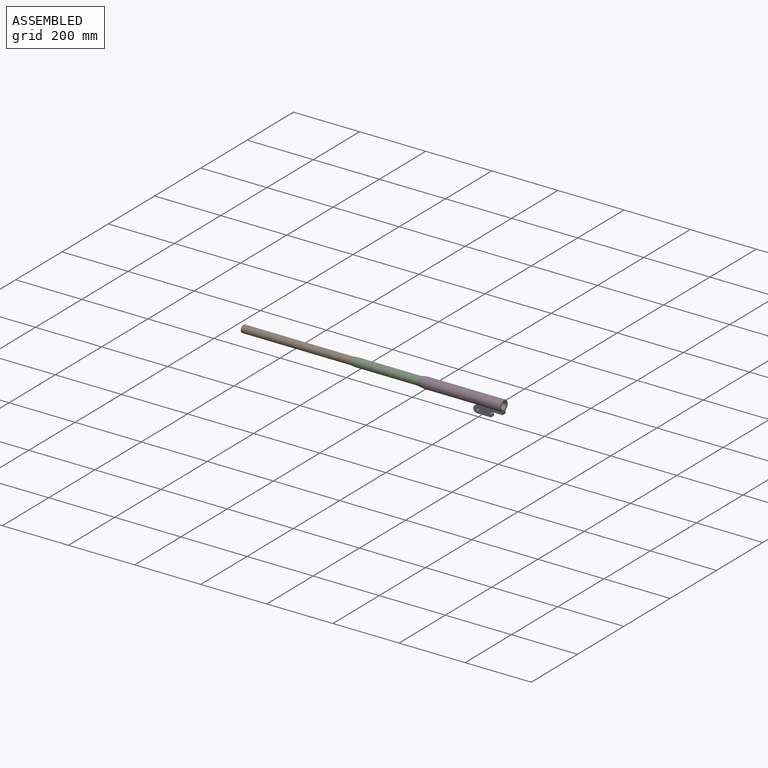
[diagram: assembled view]
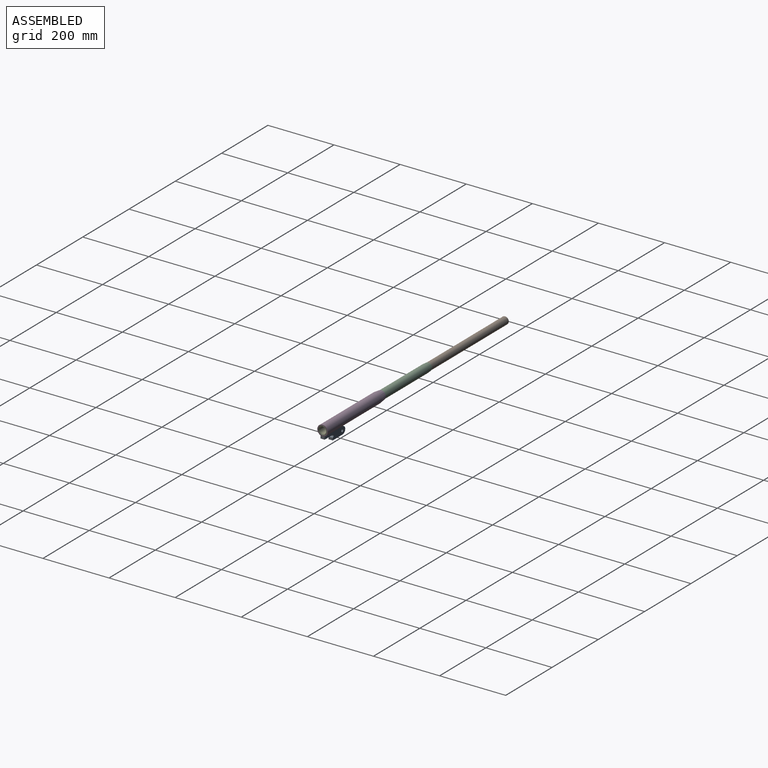
[diagram: assembled view, second angle]
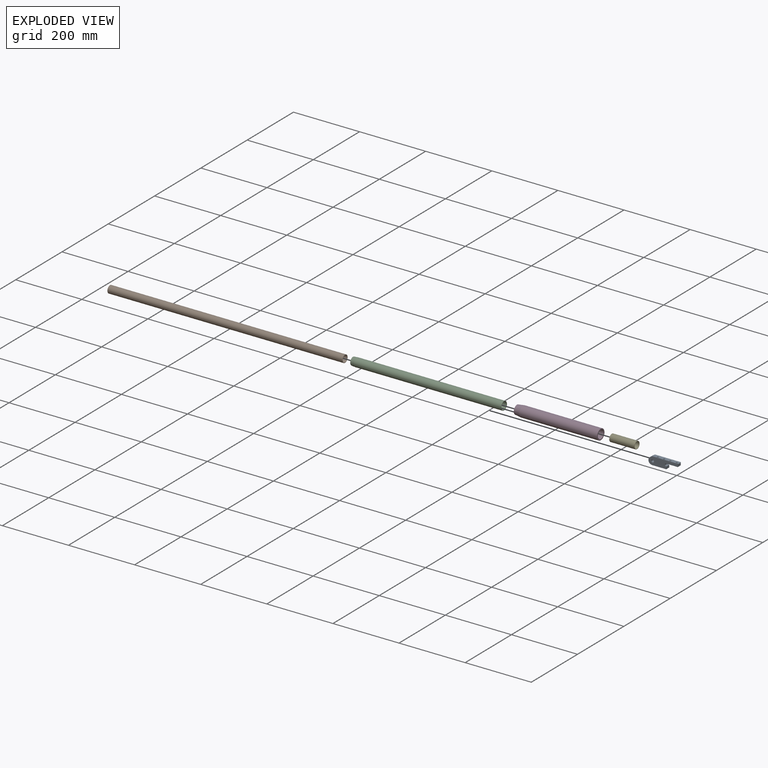
[diagram: exploded view]
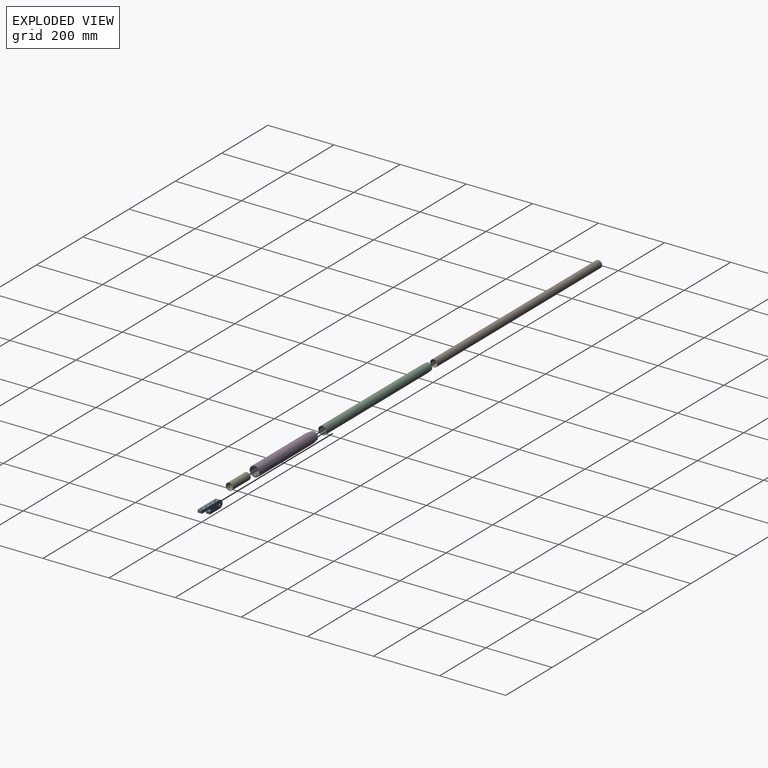
[diagram: exploded view, second angle]
ASSEMBLY  parts=5 mates=4
PART A: 23 faces, bbox 88.9x12.7x24.1 mm
  f0: cylinder r=2.38mm len=4.76mm, axis (0,0,-1), area 41mm2, adj f14,f21
  f1: cylinder r=2.38mm len=18.18mm, axis (0,0,-1), area 270.6mm2, adj f14,f19
  f2: cylinder r=2.38mm len=18.18mm, axis (0,0,-1), area 270.6mm2, adj f14,f17
  f3: cylinder r=2.38mm len=4.76mm, axis (0,0,-1), area 41mm2, adj f14,f15
  f4: plane 12.7x8.74mm, normal (1,0,0), area 99.6mm2, adj f7,f12,f13,f14
  f5: plane 12.7x7.41mm, normal (1,0,0), area 94.1mm2, adj f6,f10,f12,f13
  f6: cylinder r=3.97mm len=12.7mm, axis (0,1,0), area 158.3mm2, adj f5,f7,f12,f13
  f7: plane 34.93x12.7mm, normal (0,0,-1), area 363.4mm2, adj f4,f6,f12,f13,f16,f22
  f8: cylinder r=50.8mm len=12.7mm, axis (0,1,0), area 71.4mm2, adj f9,f12,f13,f14
  f9: cylinder r=11.11mm len=20.3mm, axis (0,1,0), area 359mm2, adj f8,f10,f12,f13
  f10: plane 42.86x12.7mm, normal (0,0,-1), area 464.2mm2, adj f5,f9,f12,f13,f18,f20
  f11: cylinder r=3.97mm len=12.7mm, axis (0,1,0), area 316.7mm2, adj f12,f13
  f12: plane 88.9x24.08mm, normal (0,-1,0), area 1460.9mm2, adj f4,f5,f6,f7,f8,f9,f10,f11
  f13: plane 88.9x24.08mm, normal (0,1,0), area 1460.9mm2, adj f4,f5,f6,f7,f8,f9,f10,f11
  f14: cylinder r=15.88mm len=80.05mm, axis (1,0,0), area 963.4mm2, adj f0,f1,f2,f3,f4,f8,f12,f13
  f15: plane 7.14x7.14mm, normal (0,0,-1), area 22.3mm2, adj f3,f16
  f16: cylinder r=3.57mm len=7.14mm, axis (0,0,-1), area 106.9mm2, adj f7,f15
  f17: plane 7.14x7.14mm, normal (0,0,-1), area 22.3mm2, adj f2,f18
  f18: cylinder r=3.57mm len=7.14mm, axis (0,0,-1), area 106.9mm2, adj f10,f17
  f19: plane 7.14x7.14mm, normal (0,0,-1), area 22.3mm2, adj f1,f20
  f20: cylinder r=3.57mm len=7.14mm, axis (0,0,-1), area 106.9mm2, adj f10,f19
  f21: plane 7.14x7.14mm, normal (0,0,-1), area 22.3mm2, adj f0,f22
  f22: cylinder r=3.57mm len=7.14mm, axis (0,0,-1), area 106.9mm2, adj f7,f21
PART B: 5 faces, bbox 711.2x22.2x22.2 mm
  f0: cylinder r=9.46mm len=701.04mm, axis (1,0,0), area 41675.7mm2, adj f2,f4
  f1: cylinder r=11.11mm len=711.2mm, axis (1,0,0), area 49657.3mm2, adj f2,f3
  f2: plane 22.23x22.23mm, normal (-1,0,0), area 106.7mm2, adj f0,f1
  f3: plane 22.23x22.23mm, normal (1,0,0), area 51.4mm2, adj f1,f4
  f4: cone r=9.46mm half-angle=5deg, axis (1,0,0), area 634.8mm2, adj f0,f3
PART C: 10 faces, bbox 457.2x25.4x25.4 mm
  f0: cylinder r=11.23mm len=456.69mm, axis (1,0,0), area 32165.6mm2, adj f2,f4,f6,f7,f8,f9
  f1: cylinder r=12.7mm len=444.5mm, axis (1,0,0), area 35420.1mm2, adj f3,f5,f6,f7,f8,f9
  f2: plane 23.37x23.37mm, normal (-1,0,0), area 32.9mm2, adj f0,f5
  f3: plane 25.4x25.4mm, normal (1,0,0), area 74.1mm2, adj f1,f4
  f4: cone r=11.23mm half-angle=45deg, axis (1,0,0), area 51.8mm2, adj f0,f3
  f5: cone r=12.7mm half-angle=4.6deg, axis (1,0,0), area 976mm2, adj f1,f2
  f6: cylinder r=1.98mm len=3.96mm, axis (0,0,1), area 18.5mm2, adj f0,f1
  f7: cylinder r=1.98mm len=3.96mm, axis (0,0,1), area 18.5mm2, adj f0,f1
  f8: cylinder r=1.98mm len=3.96mm, axis (0,0,1), area 18.5mm2, adj f0,f1
  f9: cylinder r=1.98mm len=3.96mm, axis (0,0,1), area 18.5mm2, adj f0,f1
PART D: 9 faces, bbox 254x31.8x31.8 mm
  f0: cylinder r=12.83mm len=254mm, axis (1,0,0), area 20421.5mm2, adj f2,f3,f5,f6,f7,f8
  f1: cylinder r=15.88mm len=234.95mm, axis (1,0,0), area 23385.8mm2, adj f3,f4,f5,f6,f7,f8
  f2: plane 26.67x26.67mm, normal (-1,0,0), area 41.8mm2, adj f0,f4
  f3: plane 31.75x31.75mm, normal (1,0,0), area 274.8mm2, adj f0,f1
  f4: cone r=15.88mm half-angle=7.6deg, axis (1,0,0), area 1763.6mm2, adj f1,f2
  f5: cylinder r=1.98mm len=3.96mm, axis (0,0,1), area 38.1mm2, adj f0,f1
  f6: cylinder r=1.98mm len=3.96mm, axis (0,0,1), area 38.1mm2, adj f0,f1
  f7: cylinder r=1.98mm len=3.96mm, axis (0,0,1), area 38.1mm2, adj f0,f1
  f8: cylinder r=1.98mm len=3.96mm, axis (0,0,1), area 38.1mm2, adj f0,f1
PART E: 4 faces, bbox 76.2x22.2x22.2 mm
  f0: cylinder r=10.22mm len=76.2mm, axis (1,0,0), area 4894.8mm2, adj f2,f3
  f1: cylinder r=11.11mm len=76.2mm, axis (1,0,0), area 5320.4mm2, adj f2,f3
  f2: plane 22.23x22.23mm, normal (-1,0,0), area 59.6mm2, adj f0,f1
  f3: plane 22.23x22.23mm, normal (1,0,0), area 59.6mm2, adj f0,f1
PLACE A t=(83.82,0,-9.52)mm
PLACE B at identity fixed
PLACE C t=(77.47,0,0)mm
PLACE D t=(77.47,0,0)mm
PLACE E rot(axis=(0,1,0),180deg) t=(0,0,0)mm
MATE fastened B.f1 <-> E.f1  axis (1,0,0) through (0,0,0)mm
MATE fastened C.f1 <-> E.f1  axis (1,0,0) through (77.47,0,0)mm
MATE fastened A.f14 <-> D.f1  axis (1,0,0) through (77.47,0,0)mm
MATE fastened C.f1 <-> D.f1  axis (1,0,0) through (77.47,0,0)mm
